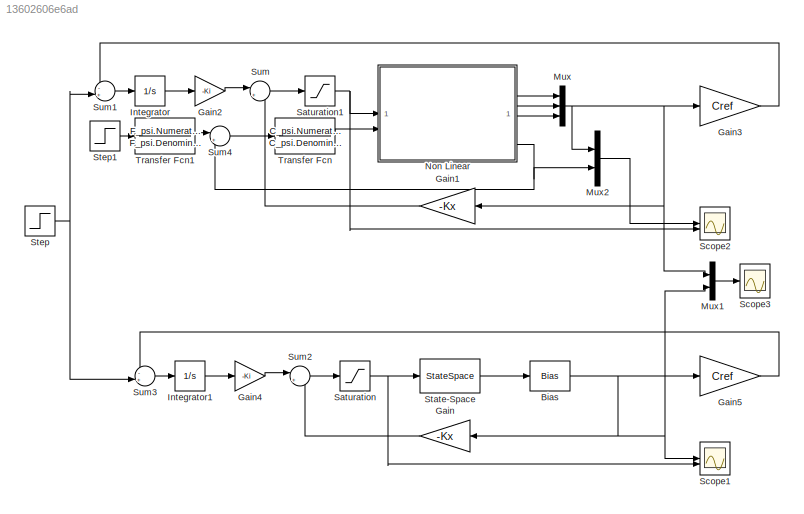
MODEL slx_13602606e6ad
KIND model
CONFIG AbsTol = auto
CONFIG EnableMultiTasking = off
CONFIG FixedStep = auto
CONFIG MaxStep = auto
CONFIG MinStep = auto
CONFIG RelTol = 1e-3
CONFIG SampleTimeConstraint = Unconstrained
CONFIG SolverName = VariableStepAuto
CONFIG StartTime = 0.0
CONFIG StopTime = 15
BLOCK [Bias] Bias
  Bias = [0;0;0]
  SaturateOnIntegerOverflow = off
BLOCK [Gain] Gain
  Gain = -Kx
  Multiplication = Matrix(K*u)
BLOCK [Gain] Gain1
  Gain = -Kx
  Multiplication = Matrix(K*u)
BLOCK [Gain] Gain2
  Gain = -Ki
BLOCK [Gain] Gain3
  Gain = Cref
  Multiplication = Matrix(K*u)
BLOCK [Gain] Gain4
  Gain = -Ki
BLOCK [Gain] Gain5
  Gain = Cref
  Multiplication = Matrix(K*u)
BLOCK [Integrator] Integrator
BLOCK [Integrator] Integrator1
BLOCK [Mux] Mux
  DisplayOption = bar
  Inputs = 3
BLOCK [Mux] Mux1
  DisplayOption = bar
  Inputs = 2
BLOCK [Mux] Mux2
  DisplayOption = bar
  Inputs = 2
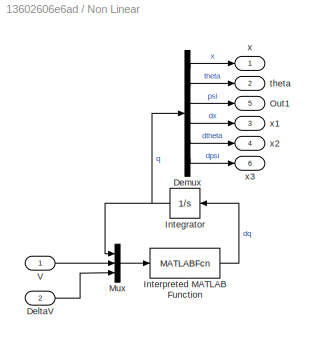
BLOCK [SubSystem] Non Linear
BLOCK [Inport] Non Linear/DeltaV
  Port = 2
BLOCK [Demux] Non Linear/Demux
  Outputs = 6
BLOCK [Integrator] Non Linear/Integrator
  InitialCondition = [0;0;0;0;0;0]
BLOCK [MATLABFcn] Non Linear/Interpreted MATLAB Function
  MATLABFcn = modelo8_Func
  OutputDimensions = 6
  OutputSignalType = real
BLOCK [Mux] Non Linear/Mux
  DisplayOption = bar
  Inputs = 3
BLOCK [Outport] Non Linear/Out1
  IconDisplay = Signal name
  Port = 5
BLOCK [Inport] Non Linear/V
BLOCK [Outport] Non Linear/theta
  IconDisplay = Signal name
  Port = 2
BLOCK [Outport] Non Linear/x
  IconDisplay = Signal name
BLOCK [Outport] Non Linear/x1
  IconDisplay = Signal name
  Port = 3
BLOCK [Outport] Non Linear/x2
  IconDisplay = Signal name
  Port = 4
BLOCK [Outport] Non Linear/x3
  IconDisplay = Signal name
  Port = 6
BLOCK [Saturate] Saturation
  LowerLimit = -7.4
  UpperLimit = 7.4
BLOCK [Saturate] Saturation1
  LowerLimit = -7.4
  UpperLimit = 7.4
BLOCK [Scope] Scope1
  Floating = off
  NumInputPorts = 2
  ScopeSpecificationString = Simulink.scopes.TimeScopeBlockCfg('CurrentConfiguration', extmgr.ConfigurationSet(extmgr.Configuration('Core','General UI',true),extmgr.Configuration('Core','Source UI',true),extmgr.Configuration('Sources','WiredSimulink',true,'DataLoggingVariableName','ScopeData1'),extmgr.Configuration('Visuals','Time Domain',true,'SerializedDisplays',{struct('MinYLimReal','-0.6033','MaxYLimReal','0.28931','YLabe...<+2077ch>
BLOCK [Scope] Scope2
  Floating = off
  NumInputPorts = 2
  ScopeSpecificationString = Simulink.scopes.TimeScopeBlockCfg('CurrentConfiguration', extmgr.ConfigurationSet(extmgr.Configuration('Core','General UI',true),extmgr.Configuration('Core','Source UI',true),extmgr.Configuration('Sources','WiredSimulink',true),extmgr.Configuration('Visuals','Time Domain',true,'SerializedDisplays',{struct('MinYLimReal','-0.38026','MaxYLimReal','1.78758','YLabelReal','','MinYLimMag','0.00000','MaxY...<+2085ch>
BLOCK [Scope] Scope3
  Floating = off
  NumInputPorts = 1
  ScopeSpecificationString = Simulink.scopes.TimeScopeBlockCfg('CurrentConfiguration', extmgr.ConfigurationSet(extmgr.Configuration('Core','General UI',true),extmgr.Configuration('Core','Source UI',true),extmgr.Configuration('Sources','WiredSimulink',true,'DataLoggingVariableName','ScopeData2'),extmgr.Configuration('Visuals','Time Domain',true,'SerializedDisplays',{struct('MinYLimReal','-0.24712','MaxYLimReal','0.589','YLabel...<+1963ch>
BLOCK [StateSpace] State-Space
  A = Ar
  B = Br
  C = Cr
  D = zeros(3,1)
  InitialCondition = zeros(3,1)
BLOCK [Step] Step
  After = 0.5
  SampleTime = 0
  Time = 5
BLOCK [Step] Step1
  After = pi/2
  SampleTime = 0
  Time = 10
BLOCK [Sum] Sum
  Inputs = |++
BLOCK [Sum] Sum1
  Inputs = -+|
BLOCK [Sum] Sum2
  Inputs = |++
BLOCK [Sum] Sum3
  Inputs = -+|
BLOCK [Sum] Sum4
  Inputs = |+-
BLOCK [TransferFcn] Transfer Fcn
  Denominator = C_psi.Denominator{1}
  Numerator = C_psi.Numerator{1}
BLOCK [TransferFcn] Transfer Fcn1
  Denominator = F_psi.Denominator{1}
  Numerator = F_psi.Numerator{1}
NET Bias:1 -> Gain5:1, Gain:1, Mux1:2, Scope1:1
LINE Gain1:1 -> Sum:2
LINE Gain2:1 -> Sum:1
LINE Gain3:1 -> Sum1:1
LINE Gain4:1 -> Sum2:1
LINE Gain5:1 -> Sum3:1
LINE Gain:1 -> Sum2:2
LINE Integrator1:1 -> Gain4:1
LINE Integrator:1 -> Gain2:1
LINE Mux1:1 -> Scope3:1
LINE Mux2:1 -> Scope2:1
NET Mux:1 -> Gain1:1, Gain3:1, Mux1:1, Mux2:1
LINE Non Linear/DeltaV:1 -> Non Linear/Mux:3
LINE Non Linear/Demux:1 -> Non Linear/x:1
LINE Non Linear/Demux:2 -> Non Linear/theta:1
LINE Non Linear/Demux:3 -> Non Linear/Out1:1
LINE Non Linear/Demux:4 -> Non Linear/x1:1
LINE Non Linear/Demux:5 -> Non Linear/x2:1
LINE Non Linear/Demux:6 -> Non Linear/x3:1
NET Non Linear/Integrator:1 -> Non Linear/Demux:1, Non Linear/Mux:1
LINE Non Linear/Interpreted MATLAB Function:1 -> Non Linear/Integrator:1
LINE Non Linear/Mux:1 -> Non Linear/Interpreted MATLAB Function:1
LINE Non Linear/V:1 -> Non Linear/Mux:2
LINE Non Linear:2 -> Mux:1
LINE Non Linear:3 -> Mux:2
LINE Non Linear:4 -> Mux:3
NET Non Linear:5 -> Mux2:2, Sum4:2
NET Saturation1:1 -> Non Linear:1, Scope2:2
NET Saturation:1 -> Scope1:2, State-Space:1
LINE State-Space:1 -> Bias:1
LINE Step1:1 -> Transfer Fcn1:1
NET Step:1 -> Sum1:2, Sum3:2
LINE Sum1:1 -> Integrator:1
LINE Sum2:1 -> Saturation:1
LINE Sum3:1 -> Integrator1:1
LINE Sum4:1 -> Transfer Fcn:1
LINE Sum:1 -> Saturation1:1
LINE Transfer Fcn1:1 -> Sum4:1
LINE Transfer Fcn:1 -> Non Linear:2
note: NET lines group one-source signal fan-out (src -> all destinations, sorted); 1:1 wires keep LINE
